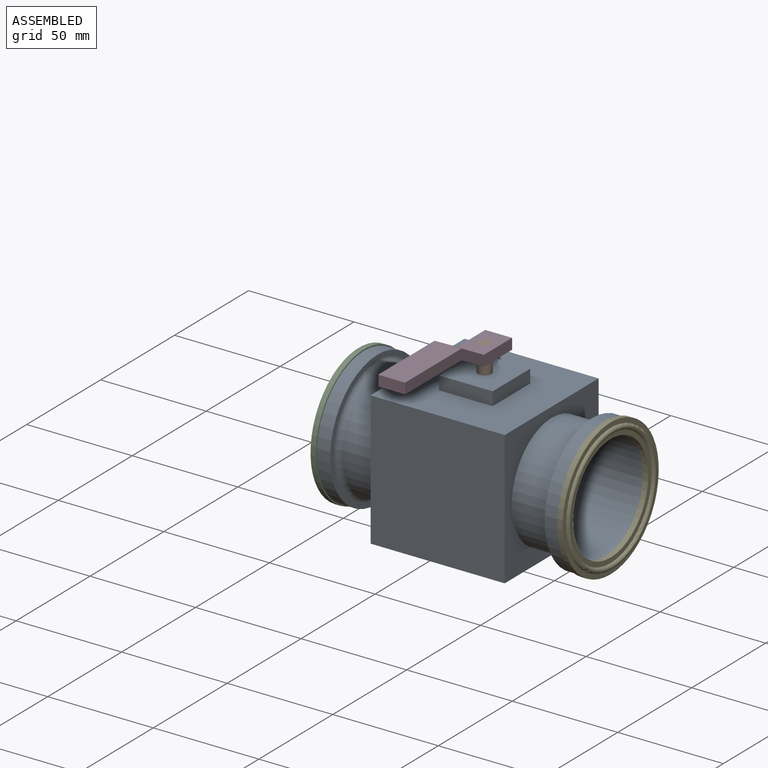
[diagram: assembled view]
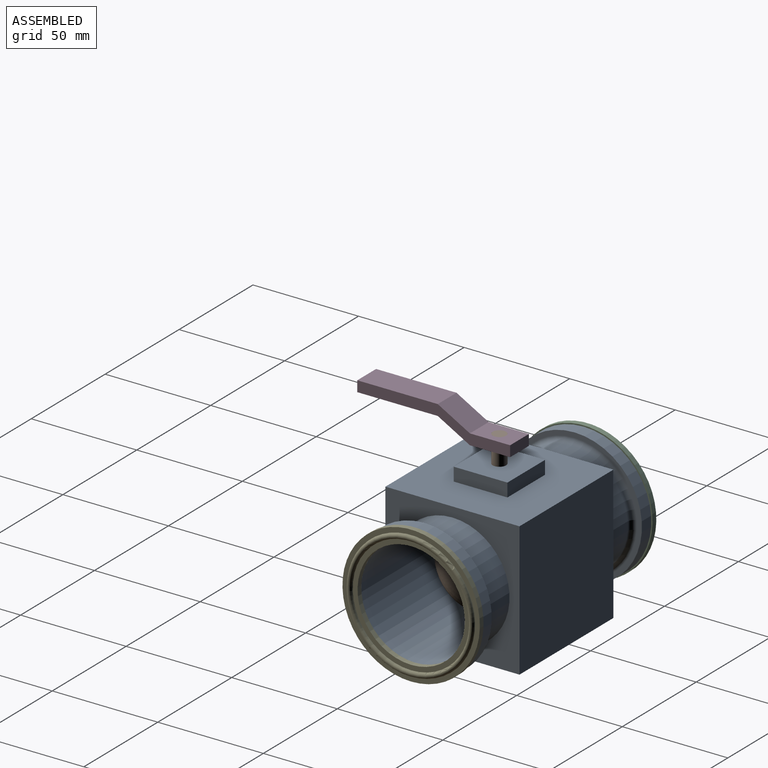
[diagram: assembled view, second angle]
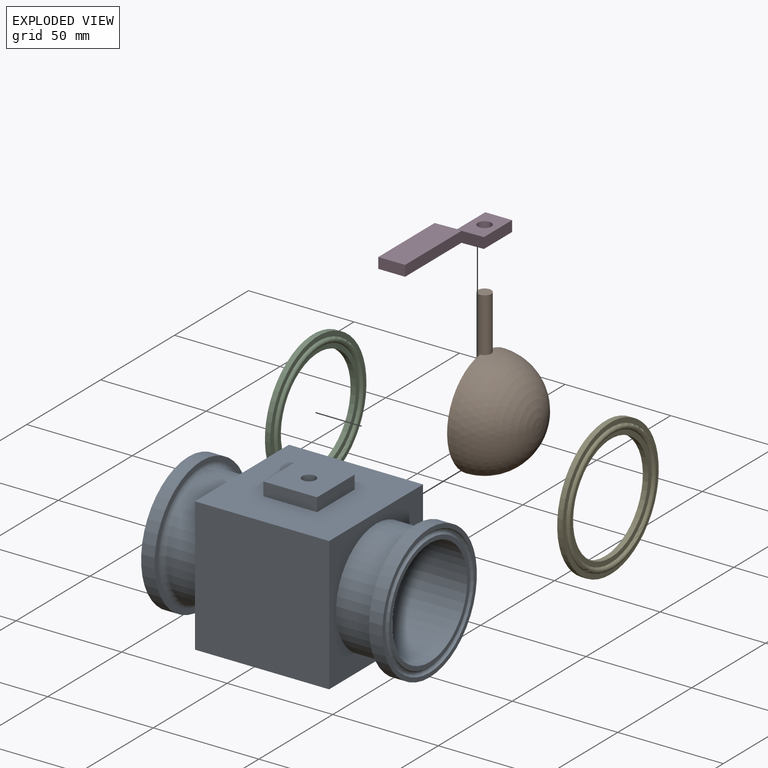
[diagram: exploded view]
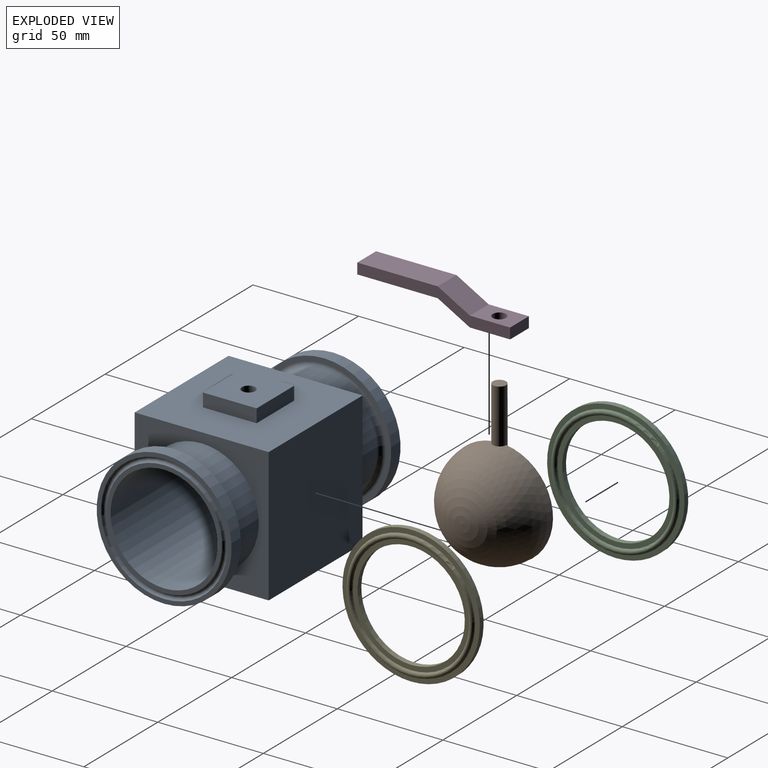
[diagram: exploded view, second angle]
ASSEMBLY  parts=5 mates=4
PART A: 27 faces, bbox 116.1x68x72.1 mm
  f0: cylinder r=25.4mm len=114.3mm, axis (-1,0,0), area 18209.7mm2, adj f10,f19,f26
  f1: plane 63.5x63.5mm, normal (0,0,1), area 3387.1mm2, adj f2,f4,f5,f7,f8,f9,f17,f18
  f2: plane 63.5x63.5mm, normal (1,0,0), area 1733.4mm2, adj f1,f3,f4,f5,f16
  f3: plane 63.5x63.5mm, normal (0,0,-1), area 4032.3mm2, adj f2,f4,f5,f17
  f4: plane 63.5x63.5mm, normal (0,-1,0), area 4032.3mm2, adj f1,f2,f3,f17
  f5: plane 63.5x63.5mm, normal (0,1,0), area 4032.3mm2, adj f1,f2,f3,f17
  f6: plane 25.4x25.4mm, normal (0,0,1), area 613.5mm2, adj f7,f8,f9,f18,f26
  f7: plane 25.4x6.35mm, normal (1,0,0), area 161.3mm2, adj f1,f6,f8,f9
  f8: plane 25.4x6.35mm, normal (0,-1,0), area 161.3mm2, adj f1,f6,f7,f18
  f9: plane 25.4x6.35mm, normal (0,1,0), area 161.3mm2, adj f1,f6,f7,f18
  f10: plane 54.81x54.81mm, normal (1,0,0), area 332.9mm2, adj f0,f11
  f11: torus R=28.68mm, axis (-1,0,0), area 718.9mm2, adj f10,f12
  f12: plane 63.91x63.91mm, normal (1,0,0), area 390.2mm2, adj f11,f13
  f13: cylinder r=31.95mm len=63.91mm, axis (-1,0,0), area 1274.9mm2, adj f12,f14
  f14: plane 63.91x63.91mm, normal (-1,0,0), area 456.7mm2, adj f13,f15
  f15: torus R=29.59mm, axis (-1,0,0), area 701.3mm2, adj f14,f16
  f16: cylinder r=27.05mm len=54.1mm, axis (-1,0,0), area 2806.1mm2, adj f2,f15
  f17: plane 63.5x63.5mm, normal (-1,0,0), area 1733.4mm2, adj f1,f3,f4,f5,f25
  f18: plane 25.4x6.35mm, normal (-1,0,0), area 161.3mm2, adj f1,f6,f8,f9
  f19: plane 54.81x54.81mm, normal (-1,0,0), area 332.9mm2, adj f0,f20
  f20: torus R=28.68mm, axis (1,0,0), area 718.9mm2, adj f19,f21
  f21: plane 63.91x63.91mm, normal (-1,0,0), area 390.2mm2, adj f20,f22
  f22: cylinder r=31.95mm len=63.91mm, axis (1,0,0), area 1274.9mm2, adj f21,f23
  f23: plane 63.91x63.91mm, normal (1,0,0), area 456.7mm2, adj f22,f24
  f24: torus R=29.59mm, axis (1,0,0), area 701.3mm2, adj f23,f25
  f25: cylinder r=27.05mm len=54.1mm, axis (1,0,0), area 2806.1mm2, adj f17,f24
  f26: cylinder r=3.17mm len=12.9mm, axis (0,0,1), area 255.3mm2, adj f0,f6
PART B: 5 faces, bbox 76.2x50.8x28.6 mm
  f0: plane 6.35x3.18mm, normal (-1,0,0), area 15.8mm2, adj f1,f3
  f1: cylinder r=3.17mm len=50.8mm, axis (-1,0,0), area 762mm2, adj f0,f2,f3,f4
  f2: plane 6.35x6.35mm, normal (1,0,0), area 31.7mm2, adj f1
  f3: plane 50.8x50.6mm, normal (0,0,-1), area 1866mm2, adj f0,f1,f4
  f4: sphere r=25.4mm, area 4037.8mm2, adj f1,f3
PART C: 8 faces, bbox 65.5x65.5x5.1 mm
  f0: torus R=28.97mm, axis (0,0,1), area 726.2mm2, adj f1,f7
  f1: plane 55.4x55.4mm, normal (0,0,1), area 383.5mm2, adj f0,f2
  f2: cylinder r=25.4mm len=50.8mm, axis (0,0,1), area 405.4mm2, adj f1,f3
  f3: plane 55.4x55.4mm, normal (0,0,-1), area 383.5mm2, adj f2,f4
  f4: torus R=28.97mm, axis (0,0,1), area 726.2mm2, adj f3,f5
  f5: plane 65.08x65.08mm, normal (0,0,-1), area 453.3mm2, adj f4,f6
  f6: cylinder r=32.54mm len=65.08mm, axis (0,0,1), area 519.3mm2, adj f5,f7
  f7: plane 65.08x65.08mm, normal (0,0,1), area 453.3mm2, adj f0,f6
PART D: 11 faces, bbox 72.4x12.7x13.5 mm
  f0: plane 12.7x5.08mm, normal (-1,0,0), area 64.5mm2, adj f1,f7,f8,f9
  f1: plane 19.05x12.7mm, normal (0,0,-1), area 210.3mm2, adj f0,f2,f8,f9,f10
  f2: plane 15.24x12.7mm, normal (0.49,0,-0.87), area 221.4mm2, adj f1,f3,f8,f9
  f3: plane 38.1x12.7mm, normal (0,0,-1), area 483.9mm2, adj f2,f4,f8,f9
  f4: plane 12.7x5.08mm, normal (1,0,0), area 64.5mm2, adj f3,f5,f8,f9
  f5: plane 38.1x12.7mm, normal (0,0,1), area 483.9mm2, adj f4,f6,f8,f9
  f6: plane 15.24x12.7mm, normal (-0.49,0,0.87), area 221.4mm2, adj f5,f7,f8,f9
  f7: plane 19.05x12.7mm, normal (0,0,1), area 210.3mm2, adj f0,f6,f8,f9,f10
  f8: plane 72.39x13.55mm, normal (0,-1,0), area 367.7mm2, adj f0,f1,f2,f3,f4,f5,f6,f7
  f9: plane 72.39x13.55mm, normal (0,1,0), area 367.7mm2, adj f0,f1,f2,f3,f4,f5,f6,f7
  f10: cylinder r=3.17mm len=6.35mm, axis (0,0,1), area 101.3mm2, adj f1,f7
PART E: same geometry as C
PLACE A t=(-41.84,-37.49,24.54)mm fixed
PLACE B rot(axis=(-0.71,0,-0.71),180deg) t=(-41.84,-37.49,24.54)mm
PLACE C rot(axis=(0,1,0),90deg) t=(-100.26,-37.49,24.54)mm
PLACE D rot(axis=(0,0,-1),90deg) t=(-35.49,-27.96,68.36)mm
PLACE E rot(axis=(0,1,0),90deg) t=(16.58,-37.49,24.54)mm
MATE fastened D.f10 <-> B.f1  axis (0,0,1) through (-41.84,-37.49,75.34)mm
MATE revolute B.f1 <-> A.f26  axis (0,0,1) through (-41.84,-37.49,75.34)mm
MATE fastened C.f0 <-> A.f0  axis (1,0,0) through (-98.99,-37.49,24.54)mm
MATE fastened E.f0 <-> A.f0  axis (-1,0,0) through (15.31,-37.49,24.54)mm
